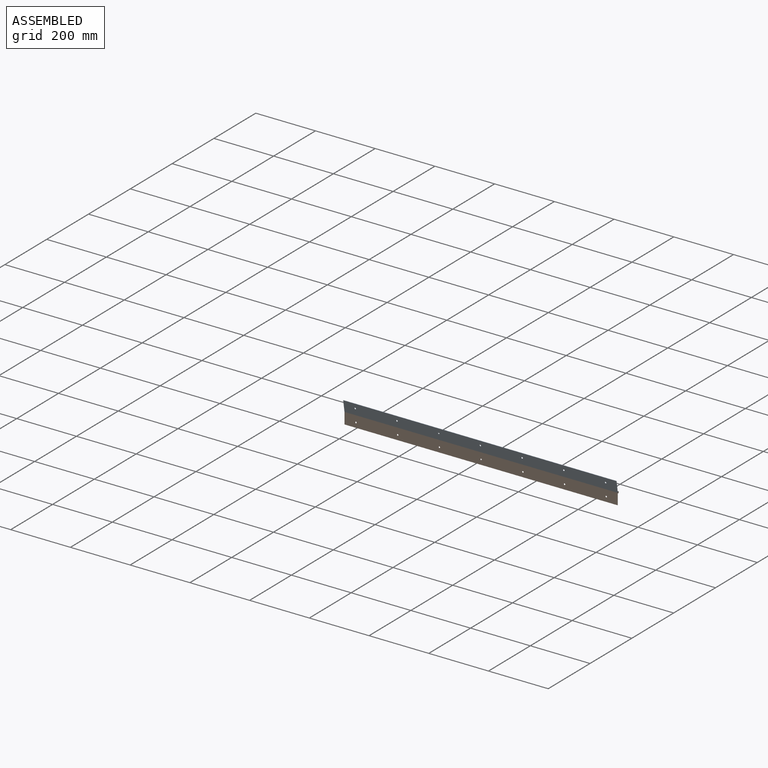
[diagram: assembled view]
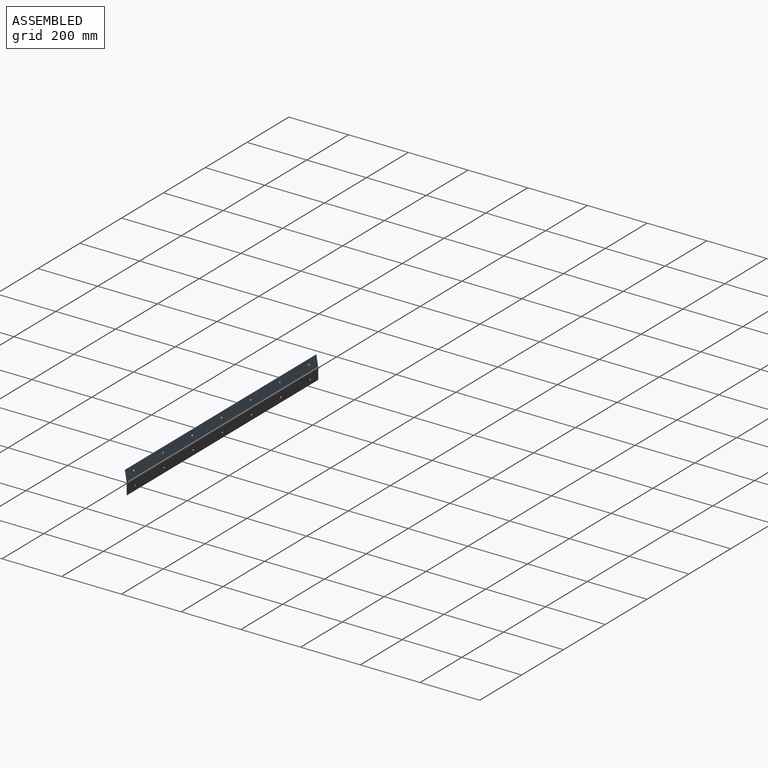
[diagram: assembled view, second angle]
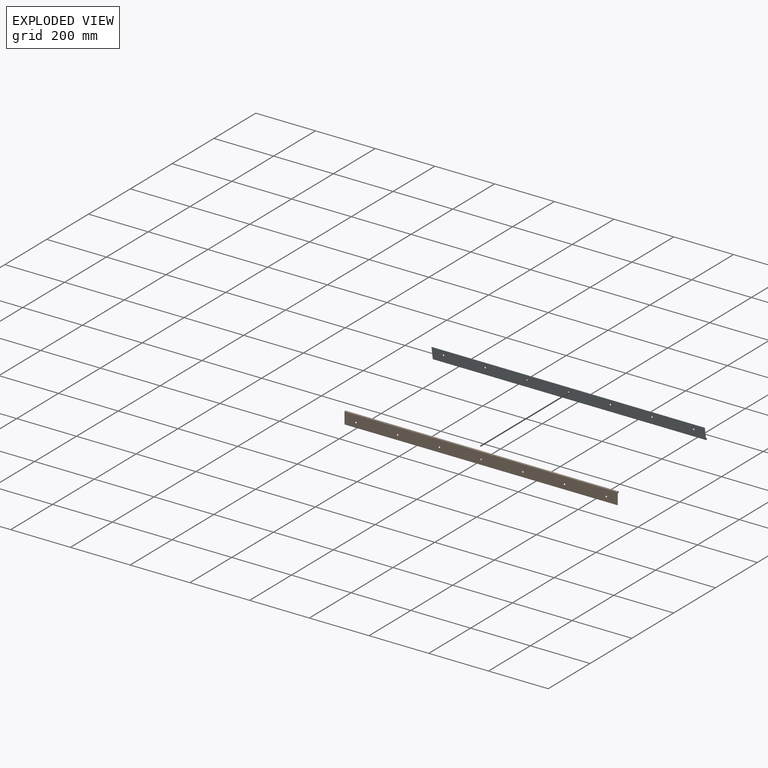
[diagram: exploded view]
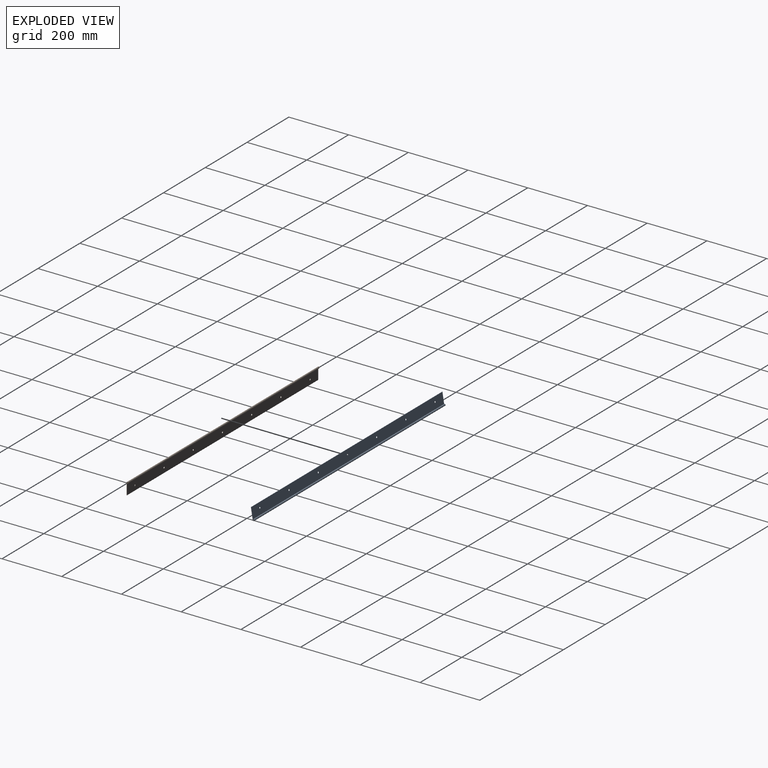
[diagram: exploded view, second angle]
ASSEMBLY  parts=2 mates=2
PART A: 13 faces, bbox 914.4x5.7x41 mm
  f0: plane 914.4x38.1mm, normal (0,-1,0), area 34688.9mm2, adj f1,f3,f4,f5,f6,f7,f8,f9
  f1: plane 914.4x1.27mm, normal (0,0,-1), area 1161.3mm2, adj f0,f2,f4,f5
  f2: plane 914.4x35.72mm, normal (0,1,0), area 32516.3mm2, adj f1,f3,f4,f5,f6,f7,f8,f9
  f3: cylinder r=2.86mm len=914.4mm, axis (-1,0,0), area 13852.1mm2, adj f0,f2,f4,f5
  f4: plane 40.96x5.72mm, normal (1,0,0), area 71.9mm2, adj f0,f1,f2,f3
  f5: plane 40.96x5.72mm, normal (-1,0,0), area 71.9mm2, adj f0,f1,f2,f3
  f6: cylinder r=2.61mm len=5.22mm, axis (0,-1,0), area 20.8mm2, adj f0,f2
  f7: cylinder r=2.61mm len=5.22mm, axis (0,-1,0), area 20.8mm2, adj f0,f2
  f8: cylinder r=2.61mm len=5.22mm, axis (0,-1,0), area 20.8mm2, adj f0,f2
  f9: cylinder r=2.61mm len=5.22mm, axis (0,-1,0), area 20.8mm2, adj f0,f2
  f10: cylinder r=2.61mm len=5.22mm, axis (0,-1,0), area 20.8mm2, adj f0,f2
  f11: cylinder r=2.61mm len=5.22mm, axis (0,-1,0), area 20.8mm2, adj f0,f2
  f12: cylinder r=2.61mm len=5.22mm, axis (0,-1,0), area 20.8mm2, adj f0,f2
PART B: same geometry as A
PLACE A rot(axis=(0,-1,-0.08),180deg) t=(689.83,54.22,-52)mm
PLACE B t=(-224.57,60.27,-127.25)mm fixed
MATE planar B.f3 <-> A.f3  axis (1,0,0) through (689.83,63.13,-89.15)mm
MATE cylindrical A.f3 <-> B.f3  axis (1,0,0) through (232.63,63.13,-89.15)mm
